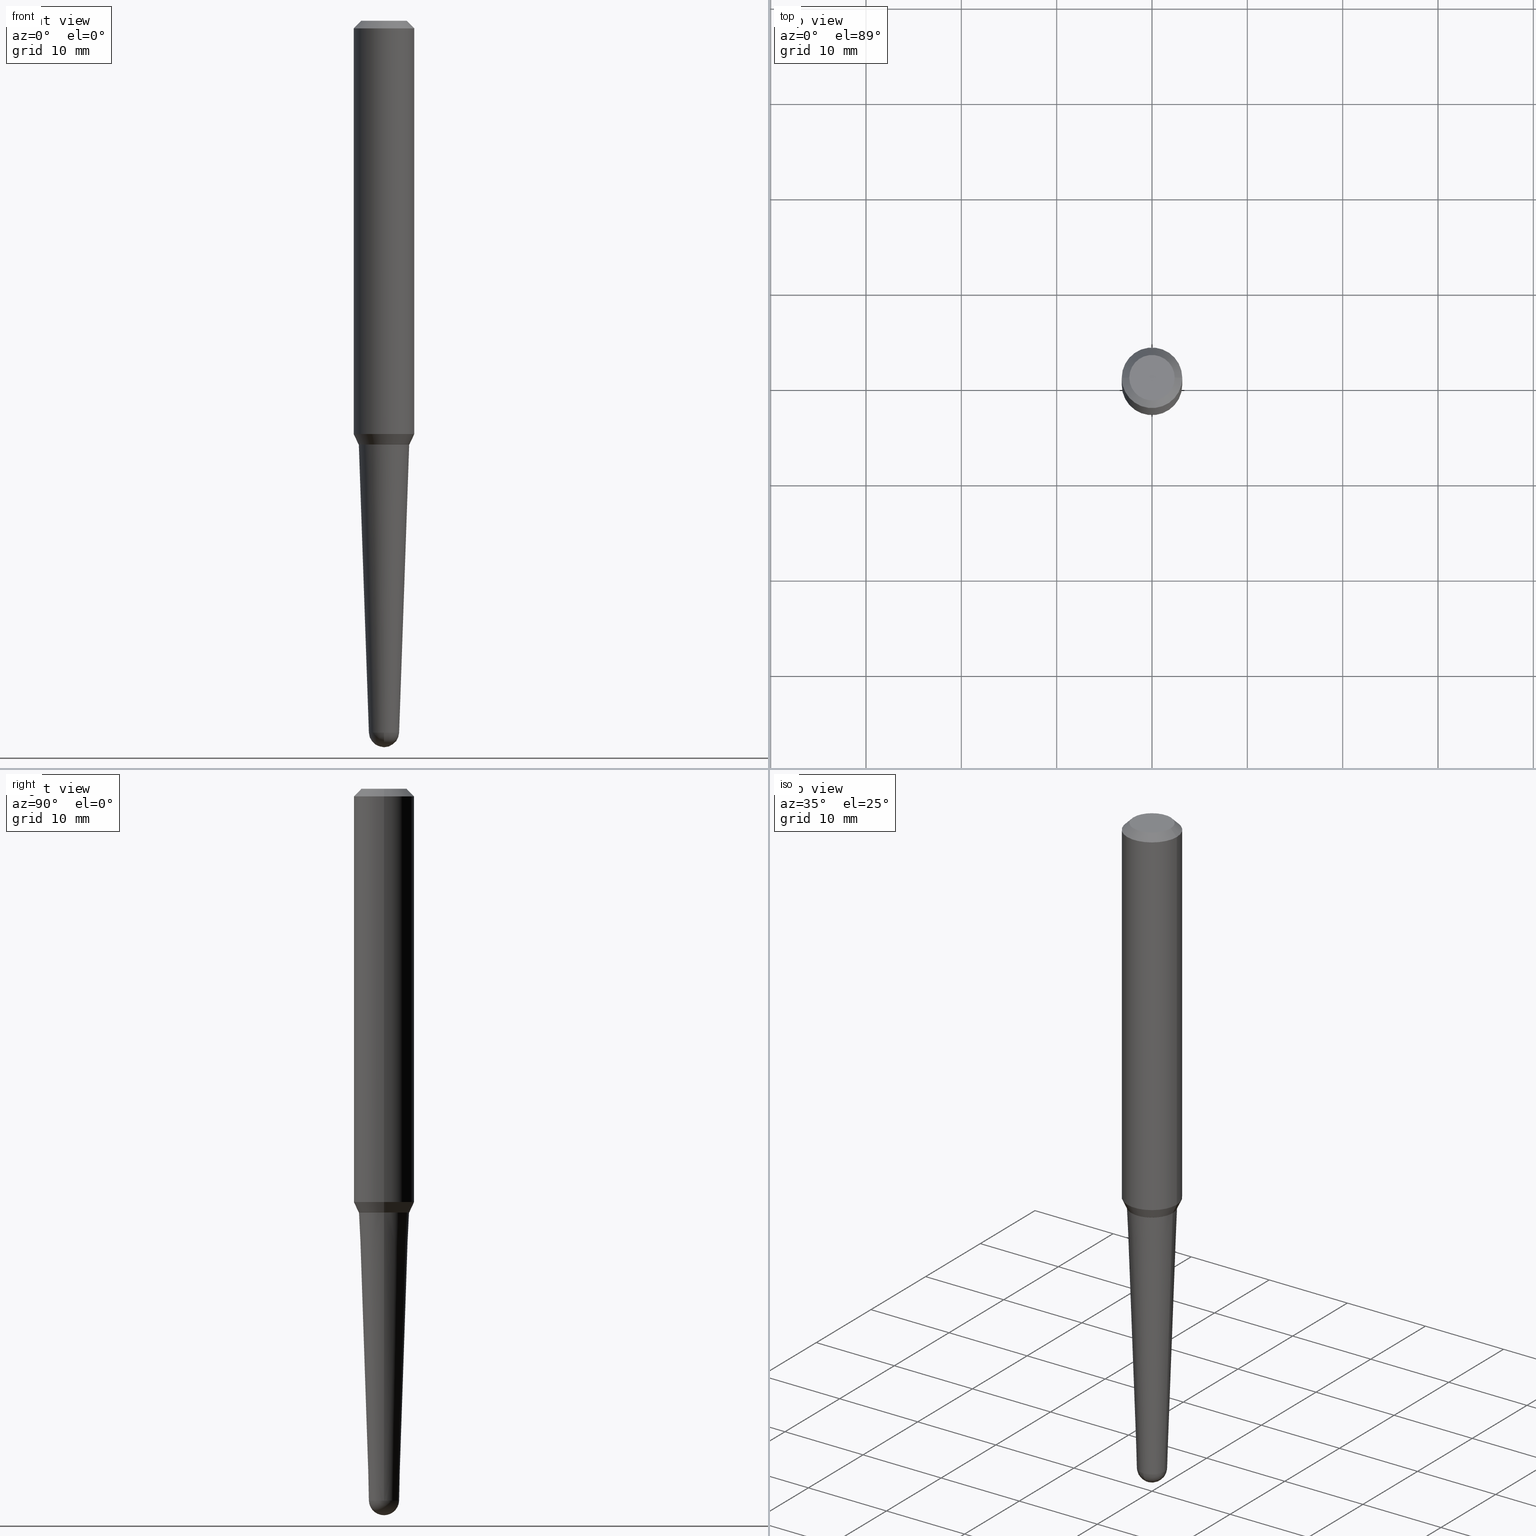
[diagram: canonical four-view strip — front | top / right | iso, engineering-drawing reading convention]
A machine part, canonical four-view strip (front | top / right | iso — engineering-drawing reading convention). The complete STEP part file that produces these views, byte-faithful:
ISO-10303-21;
HEADER;
FILE_DESCRIPTION (( 'STEP AP203' ),
    '1' );
FILE_NAME ('32406.STEP',
    '2024-03-04T15:23:05',
    ( '' ),
    ( '' ),
    'SwSTEP 2.0',
    'SolidWorks 2023',
    '' );
FILE_SCHEMA (( 'CONFIG_CONTROL_DESIGN' ));
ENDSEC;

DATA;
#1 = AXIS2_PLACEMENT_3D ( 'NONE', #50, #238, #412 ) ;
#2 = ORIENTED_EDGE ( 'NONE', *, *, #164, .F. ) ;
#3 = CARTESIAN_POINT ( 'NONE',  ( 0.1050065102901265729, -6.841603144576116644E-15, -1.749500000000000277 ) ) ;
#4 = EDGE_CURVE ( 'NONE', #457, #114, #172, .T. ) ;
#5 = CARTESIAN_POINT ( 'NONE',  ( 7.188898720077434965E-29, -1.026384211669372732E-14, -2.939681218543906294 ) ) ;
#6 = ORIENTED_EDGE ( 'NONE', *, *, #36, .F. ) ;
#7 = DIRECTION ( 'NONE',  ( 1.000000000000000000, -6.982962677686266711E-15, 4.852736867747369010E-29 ) ) ;
#8 = APPROVAL_ROLE ( '' ) ;
#9 = AXIS2_PLACEMENT_3D ( 'NONE', #312, #96, #212 ) ;
#10 = PERSON_AND_ORGANIZATION ( #250, #269 ) ;
#11 = DIRECTION ( 'NONE',  ( 0.03489949670250089980, 3.245652539804591788E-15, 0.9993908270190957621 ) ) ;
#12 = CARTESIAN_POINT ( 'NONE',  ( 7.642090019328557120E-31, -1.091087918388483734E-16, -0.03125000000000002082 ) ) ;
#13 = APPROVAL_DATE_TIME ( #44, #378 ) ;
#14 = EDGE_LOOP ( 'NONE', ( #222, #180, #128, #242 ) ) ;
#15 = DIRECTION ( 'NONE',  ( 0.7071067811865459074, -7.319954787623249734E-15, -0.7071067811865491270 ) ) ;
#16 = APPROVAL_DATE_TIME ( #201, #61 ) ;
#17 = AXIS2_PLACEMENT_3D ( 'NONE', #216, #89, #162 ) ;
#18 = CARTESIAN_POINT ( 'NONE',  ( -0.1045065102901267806, -5.364879698538517410E-15, -1.750000000000000444 ) ) ;
#19 = DIRECTION ( 'NONE',  ( 1.000000000000000000, -6.982962677686265922E-15, 4.876176775795935793E-29 ) ) ;
#20 = VECTOR ( 'NONE', #116, 39.37007874015748143 ) ;
#21 = CARTESIAN_POINT ( 'NONE',  ( 7.436103775026404221E-29, -9.894575986595534167E-15, -2.937500000000000000 ) ) ;
#22 = CARTESIAN_POINT ( 'NONE',  ( 0.1250000000000001943, -6.831515564972978588E-15, -1.706623822952039404 ) ) ;
#23 = PLANE ( 'NONE',  #17 ) ;
#24 = EDGE_LOOP ( 'NONE', ( #347, #26, #391, #392 ) ) ;
#25 = DIRECTION ( 'NONE',  ( 1.000000000000000000, -6.982962677686266711E-15, 0.000000000000000000 ) ) ;
#26 = ORIENTED_EDGE ( 'NONE', *, *, #157, .T. ) ;
#27 = CARTESIAN_POINT ( 'NONE',  ( 4.438186827023827801E-16, 0.06246192668868324332, -2.939681218543906294 ) ) ;
#28 = DIRECTION ( 'NONE',  ( -2.445468806185136597E-29, 3.491481338843145583E-15, 1.000000000000000000 ) ) ;
#29 = ORIENTED_EDGE ( 'NONE', *, *, #304, .T. ) ;
#30 = FACE_OUTER_BOUND ( 'NONE', #71, .T. ) ;
#31 = ORIENTED_EDGE ( 'NONE', *, *, #47, .F. ) ;
#32 = DIRECTION ( 'NONE',  ( -2.445468806185136597E-29, 3.491481338843145583E-15, 1.000000000000000000 ) ) ;
#33 = AXIS2_PLACEMENT_3D ( 'NONE', #123, #332, #411 ) ;
#34 = ORIENTED_EDGE ( 'NONE', *, *, #139, .F. ) ;
#35 = ADVANCED_FACE ( 'NONE', ( #321 ), #23, .F. ) ;
#36 = EDGE_CURVE ( 'NONE', #233, #313, #440, .T. ) ;
#37 = DIRECTION ( 'NONE',  ( -2.445468806185136597E-29, 3.491481338843145583E-15, 1.000000000000000000 ) ) ;
#38 = ORIENTED_EDGE ( 'NONE', *, *, #189, .F. ) ;
#39 = FACE_OUTER_BOUND ( 'NONE', #102, .T. ) ;
#40 = APPLICATION_PROTOCOL_DEFINITION ( 'international standard', 'config_control_design', 1994, #152 ) ;
#41 = EDGE_CURVE ( 'NONE', #143, #410, #273, .T. ) ;
#42 = VECTOR ( 'NONE', #11, 39.37007874015748143 ) ;
#43 = DIRECTION ( 'NONE',  ( -2.445468806185136597E-29, 3.491481338843145583E-15, 1.000000000000000000 ) ) ;
#44 = DATE_AND_TIME ( #305, #46 ) ;
#45 = VECTOR ( 'NONE', #387, 39.37007874015748854 ) ;
#46 = LOCAL_TIME ( 10, 23, 5.000000000000000000, #333 ) ;
#47 = EDGE_CURVE ( 'NONE', #313, #388, #54, .T. ) ;
#48 = CARTESIAN_POINT ( 'NONE',  ( -0.1249999999999996808, 7.637615428719326605E-16, -0.03125000000000002082 ) ) ;
#49 = PERSON_AND_ORGANIZATION_ROLE ( 'creator' ) ;
#50 = CARTESIAN_POINT ( 'NONE',  ( 4.278347676420897364E-29, -6.108346602306083956E-15, -1.749500000000000277 ) ) ;
#51 = EDGE_CURVE ( 'NONE', #136, #376, #429, .T. ) ;
#52 = ORIENTED_EDGE ( 'NONE', *, *, #246, .F. ) ;
#53 = DATE_AND_TIME ( #232, #203 ) ;
#54 = CIRCLE ( 'NONE', #147, 0.1249999999999996808 ) ;
#55 = MANIFOLD_SOLID_BREP ( 'Body-Move/Copy2[2]', #328 ) ;
#56 = EDGE_CURVE ( 'NONE', #65, #388, #228, .T. ) ;
#57 = AXIS2_PLACEMENT_3D ( 'NONE', #393, #181, #431 ) ;
#58 = EDGE_CURVE ( 'NONE', #396, #70, #390, .T. ) ;
#59 = CARTESIAN_POINT ( 'NONE',  ( 7.188898720077434965E-29, -1.026384211669372732E-14, -2.939681218543906294 ) ) ;
#60 = DIRECTION ( 'NONE',  ( -2.445468806185136597E-29, 3.491481338843145583E-15, 1.000000000000000000 ) ) ;
#61 = APPROVAL ( #327, 'UNSPECIFIED' ) ;
#62 = CIRCLE ( 'NONE', #308, 0.06246192668869351983 ) ;
#63 = FACE_OUTER_BOUND ( 'NONE', #318, .T. ) ;
#64 = CARTESIAN_POINT ( 'NONE',  ( 4.279570410823989605E-29, -6.110092342975506249E-15, -1.750000000000000444 ) ) ;
#65 = VERTEX_POINT ( 'NONE', #167 ) ;
#66 = CARTESIAN_POINT ( 'NONE',  ( -0.1045065102901267806, -5.367528925712628611E-15, -1.750000000000000444 ) ) ;
#67 = ORIENTED_EDGE ( 'NONE', *, *, #246, .T. ) ;
#68 = CARTESIAN_POINT ( 'NONE',  ( -0.1249999999999996808, -2.145698591350394182E-15, -0.03125000000000002082 ) ) ;
#69 = LOCAL_TIME ( 10, 23, 5.000000000000000000, #338 ) ;
#70 = VERTEX_POINT ( 'NONE', #301 ) ;
#71 = EDGE_LOOP ( 'NONE', ( #148, #75 ) ) ;
#72 = LOCAL_TIME ( 10, 23, 5.000000000000000000, #373 ) ;
#73 = CARTESIAN_POINT ( 'NONE',  ( -0.06246192668869351983, -7.595552536691422377E-15, -2.939681218543906294 ) ) ;
#74 = LENGTH_MEASURE_WITH_UNIT ( LENGTH_MEASURE( 0.02539999999999999897 ), #324 );
#75 = ORIENTED_EDGE ( 'NONE', *, *, #4, .T. ) ;
#76 =( CONVERSION_BASED_UNIT ( 'INCH', #74 ) LENGTH_UNIT ( ) NAMED_UNIT ( #294 ) );
#77 = AXIS2_PLACEMENT_3D ( 'NONE', #448, #160, #239 ) ;
#78 = CONICAL_SURFACE ( 'NONE', #101, 0.1050065102901265729, 0.4363323129985795523 ) ;
#79 = LINE ( 'NONE', #3, #95 ) ;
#80 = DIRECTION ( 'NONE',  ( -2.445468806185136597E-29, 3.491481338843145583E-15, 1.000000000000000000 ) ) ;
#81 = APPLICATION_PROTOCOL_DEFINITION ( 'international standard', 'config_control_design', 1994, #211 ) ;
#82 = ADVANCED_FACE ( 'NONE', ( #91 ), #153, .T. ) ;
#83 = ORIENTED_EDGE ( 'NONE', *, *, #58, .F. ) ;
#84 = APPROVAL_ROLE ( '' ) ;
#85 = DIRECTION ( 'NONE',  ( -2.445468806185136877E-29, 3.491481338843145188E-15, 1.000000000000000000 ) ) ;
#86 = AXIS2_PLACEMENT_3D ( 'NONE', #258, #122, #408 ) ;
#87 = PERSON_AND_ORGANIZATION ( #250, #269 ) ;
#88 = ORIENTED_EDGE ( 'NONE', *, *, #304, .F. ) ;
#89 = DIRECTION ( 'NONE',  ( 2.438088387897960049E-29, -3.491481338843145188E-15, -1.000000000000000000 ) ) ;
#90 = ORIENTED_EDGE ( 'NONE', *, *, #51, .T. ) ;
#91 = FACE_OUTER_BOUND ( 'NONE', #24, .T. ) ;
#92 = EDGE_CURVE ( 'NONE', #396, #457, #118, .T. ) ;
#93 = ADVANCED_FACE ( 'NONE', ( #39 ), #130, .T. ) ;
#94 = PERSON_AND_ORGANIZATION_ROLE ( 'design_owner' ) ;
#95 = VECTOR ( 'NONE', #434, 39.37007874015748143 ) ;
#96 = DIRECTION ( 'NONE',  ( 1.000000000000000000, -7.105427357601001070E-15, 4.926315508542082329E-29 ) ) ;
#97 = CC_DESIGN_DATE_AND_TIME_ASSIGNMENT ( #443, #125, ( #149 ) ) ;
#98 = FACE_OUTER_BOUND ( 'NONE', #330, .T. ) ;
#99 = VECTOR ( 'NONE', #296, 39.37007874015748143 ) ;
#100 = LINE ( 'NONE', #137, #166 ) ;
#101 = AXIS2_PLACEMENT_3D ( 'NONE', #252, #115, #322 ) ;
#102 = EDGE_LOOP ( 'NONE', ( #141, #2, #336, #219 ) ) ;
#103 = DIRECTION ( 'NONE',  ( 1.000000000000000000, -6.982962677686282488E-15, 0.000000000000000000 ) ) ;
#104 = ORIENTED_EDGE ( 'NONE', *, *, #41, .T. ) ;
#105 = CARTESIAN_POINT ( 'NONE',  ( -0.09375000000000009714, 7.092071469525098851E-16, -2.985923209265061018E-16 ) ) ;
#106 = ORIENTED_EDGE ( 'NONE', *, *, #56, .T. ) ;
#107 = EDGE_LOOP ( 'NONE', ( #287, #299, #67, #292, #190 ) ) ;
#108 = DIRECTION ( 'NONE',  ( 2.438088387897960049E-29, -3.491481338843145188E-15, -1.000000000000000000 ) ) ;
#109 = CONICAL_SURFACE ( 'NONE', #368, 0.1045065102901267806, 0.7853981633970726906 ) ;
#110 = CIRCLE ( 'NONE', #401, 0.06246192668869351983 ) ;
#111 = ORIENTED_EDGE ( 'NONE', *, *, #400, .F. ) ;
#112 = LOCAL_TIME ( 10, 23, 5.000000000000000000, #406 ) ;
#113 = LINE ( 'NONE', #285, #20 ) ;
#114 = VERTEX_POINT ( 'NONE', #257 ) ;
#115 = DIRECTION ( 'NONE',  ( -2.445468806185136597E-29, 3.491481338843145583E-15, 1.000000000000000000 ) ) ;
#116 = DIRECTION ( 'NONE',  ( -2.445468806185136877E-29, 3.491481338843145188E-15, 1.000000000000000000 ) ) ;
#117 = CLOSED_SHELL ( 'NONE', ( #161, #177, #127, #414, #437 ) ) ;
#118 = LINE ( 'NONE', #199, #262 ) ;
#119 = AXIS2_PLACEMENT_3D ( 'NONE', #173, #60, #454 ) ;
#120 = EDGE_LOOP ( 'NONE', ( #185, #90, #428, #31 ) ) ;
#121 = DIRECTION ( 'NONE',  ( 1.000000000000000000, -6.982962677686267499E-15, 0.000000000000000000 ) ) ;
#122 = DIRECTION ( 'NONE',  ( -2.445468806185136597E-29, 3.491481338843145583E-15, 1.000000000000000000 ) ) ;
#123 = CARTESIAN_POINT ( 'NONE',  ( 4.279570410823989605E-29, -6.110092342975506249E-15, -1.750000000000000444 ) ) ;
#124 = ADVANCED_FACE ( 'NONE', ( #445 ), #261, .T. ) ;
#125 = DATE_TIME_ROLE ( 'classification_date' ) ;
#126 = CARTESIAN_POINT ( 'NONE',  ( 7.436103775026404221E-29, -9.894575986595534167E-15, -2.937500000000000000 ) ) ;
#127 = ADVANCED_FACE ( 'NONE', ( #205 ), #334, .T. ) ;
#128 = ORIENTED_EDGE ( 'NONE', *, *, #395, .T. ) ;
#129 = ADVANCED_BREP_SHAPE_REPRESENTATION ( '32406', ( #208, #55, #439 ), #286 ) ;
#130 = CONICAL_SURFACE ( 'NONE', #419, 0.1249999999999996808, 0.7853981633974460586 ) ;
#131 = EDGE_CURVE ( 'NONE', #235, #409, #187, .T. ) ;
#132 = FACE_OUTER_BOUND ( 'NONE', #283, .T. ) ;
#133 = AXIS2_PLACEMENT_3D ( 'NONE', #272, #215, #213 ) ;
#134 = FACE_OUTER_BOUND ( 'NONE', #352, .T. ) ;
#135 = CARTESIAN_POINT ( 'NONE',  ( 7.436103775026404221E-29, -9.894575986595534167E-15, -2.937500000000000000 ) ) ;
#136 = VERTEX_POINT ( 'NONE', #202 ) ;
#137 = CARTESIAN_POINT ( 'NONE',  ( 0.1045065102901267806, -6.839857403906697507E-15, -1.750000000000000444 ) ) ;
#138 = CONICAL_SURFACE ( 'NONE', #456, 0.06246192668869351983, 0.03490658503988652156 ) ;
#139 = EDGE_CURVE ( 'NONE', #247, #114, #170, .T. ) ;
#140 = CC_DESIGN_APPROVAL ( #61, ( #149 ) ) ;
#141 = ORIENTED_EDGE ( 'NONE', *, *, #56, .F. ) ;
#142 = SPHERICAL_SURFACE ( 'NONE', #343, 0.06249999999999965999 ) ;
#143 = VERTEX_POINT ( 'NONE', #18 ) ;
#144 = ORIENTED_EDGE ( 'NONE', *, *, #435, .T. ) ;
#145 = VERTEX_POINT ( 'NONE', #268 ) ;
#146 = CC_DESIGN_PERSON_AND_ORGANIZATION_ASSIGNMENT ( #193, #302, ( #383 ) ) ;
#147 = AXIS2_PLACEMENT_3D ( 'NONE', #405, #43, #259 ) ;
#148 = ORIENTED_EDGE ( 'NONE', *, *, #413, .T. ) ;
#149 = SECURITY_CLASSIFICATION ( '', '', #168 ) ;
#150 =( NAMED_UNIT ( * ) SI_UNIT ( $, .STERADIAN. ) SOLID_ANGLE_UNIT ( ) );
#151 = DIRECTION ( 'NONE',  ( 1.000000000000000000, -6.982962677686266711E-15, 0.000000000000000000 ) ) ;
#152 = APPLICATION_CONTEXT ( 'configuration controlled 3d designs of mechanical parts and assemblies' ) ;
#153 = CYLINDRICAL_SURFACE ( 'NONE', #382, 0.1249999999999999306 ) ;
#154 = AXIS2_PLACEMENT_3D ( 'NONE', #453, #452, #19 ) ;
#155 = CALENDAR_DATE ( 2024, 4, 3 ) ;
#156 = APPROVAL_PERSON_ORGANIZATION ( #87, #61, #8 ) ;
#157 = EDGE_CURVE ( 'NONE', #136, #313, #404, .T. ) ;
#158 = UNCERTAINTY_MEASURE_WITH_UNIT (LENGTH_MEASURE( 1.000000000000000082E-05 ), #76, 'distance_accuracy_value', 'NONE');
#159 = APPROVAL_ROLE ( '' ) ;
#160 = DIRECTION ( 'NONE',  ( -2.445468806185136597E-29, 3.491481338843145583E-15, 1.000000000000000000 ) ) ;
#161 = ADVANCED_FACE ( 'NONE', ( #303 ), #284, .T. ) ;
#162 = DIRECTION ( 'NONE',  ( -1.000000000000000000, 6.982962677686265922E-15, -4.876176775795935793E-29 ) ) ;
#163 = CALENDAR_DATE ( 2024, 4, 3 ) ;
#164 = EDGE_CURVE ( 'NONE', #233, #65, #195, .T. ) ;
#165 = ORIENTED_EDGE ( 'NONE', *, *, #288, .F. ) ;
#166 = VECTOR ( 'NONE', #389, 39.37007874015748854 ) ;
#167 = CARTESIAN_POINT ( 'NONE',  ( 0.09375000000000009714, -8.049213644256852233E-16, -2.985923209264961917E-16 ) ) ;
#168 = SECURITY_CLASSIFICATION_LEVEL ( 'unclassified' ) ;
#169 = CIRCLE ( 'NONE', #421, 0.1249999999999996808 ) ;
#170 = LINE ( 'NONE', #306, #42 ) ;
#171 = ADVANCED_FACE ( 'NONE', ( #275 ), #109, .T. ) ;
#172 = CIRCLE ( 'NONE', #298, 0.1040065102901267385 ) ;
#173 = CARTESIAN_POINT ( 'NONE',  ( 7.301982065921803301E-45, -1.042529516436742983E-30, -2.985923209265013193E-16 ) ) ;
#174 = AXIS2_PLACEMENT_3D ( 'NONE', #209, #342, #271 ) ;
#175 = DIRECTION ( 'NONE',  ( -6.982962677686265922E-15, -1.000000000000000000, 0.000000000000000000 ) ) ;
#176 = LINE ( 'NONE', #66, #45 ) ;
#177 = ADVANCED_FACE ( 'NONE', ( #63 ), #142, .T. ) ;
#178 = EDGE_LOOP ( 'NONE', ( #315, #398, #425, #38 ) ) ;
#179 = CARTESIAN_POINT ( 'NONE',  ( 4.278347676420897364E-29, -6.108346602306083956E-15, -1.749500000000000277 ) ) ;
#180 = ORIENTED_EDGE ( 'NONE', *, *, #131, .T. ) ;
#181 = DIRECTION ( 'NONE',  ( -2.445468806185136597E-29, 3.491481338843145583E-15, 1.000000000000000000 ) ) ;
#182 = DIRECTION ( 'NONE',  ( 1.000000000000000000, -6.982962677686265133E-15, 0.000000000000000000 ) ) ;
#183 = PRODUCT_DEFINITION ( 'UNKNOWN', '', #383, #293 ) ;
#184 = FACE_OUTER_BOUND ( 'NONE', #14, .T. ) ;
#185 = ORIENTED_EDGE ( 'NONE', *, *, #157, .F. ) ;
#186 = PLANE ( 'NONE',  #237 ) ;
#187 = CIRCLE ( 'NONE', #1, 0.1050065102901265729 ) ;
#188 = CARTESIAN_POINT ( 'NONE',  ( 0.000000000000000000, 0.000000000000000000, 0.000000000000000000 ) ) ;
#189 = EDGE_CURVE ( 'NONE', #410, #409, #100, .T. ) ;
#190 = ORIENTED_EDGE ( 'NONE', *, *, #4, .F. ) ;
#191 = DIRECTION ( 'NONE',  ( -2.445468806185136597E-29, 3.491481338843145583E-15, 1.000000000000000000 ) ) ;
#192 = DIRECTION ( 'NONE',  ( -1.000000000000000000, 6.982962677686266711E-15, 0.000000000000000000 ) ) ;
#193 = PERSON_AND_ORGANIZATION ( #250, #269 ) ;
#194 = EDGE_CURVE ( 'NONE', #247, #357, #62, .T. ) ;
#195 = CIRCLE ( 'NONE', #77, 0.09375000000000009714 ) ;
#196 = DIRECTION ( 'NONE',  ( 2.445468806185136597E-29, -3.491481338843145583E-15, -1.000000000000000000 ) ) ;
#197 = AXIS2_PLACEMENT_3D ( 'NONE', #356, #220, #326 ) ;
#198 = APPROVAL_DATE_TIME ( #297, #460 ) ;
#199 = CARTESIAN_POINT ( 'NONE',  ( -0.06246192668869351983, -9.820023433991416822E-15, -2.939681218543906294 ) ) ;
#200 = PRODUCT_DEFINITION_SHAPE ( 'NONE', 'NONE',  #183 ) ;
#201 = DATE_AND_TIME ( #155, #72 ) ;
#202 = CARTESIAN_POINT ( 'NONE',  ( -0.1250000000000001943, -5.070466810562066862E-15, -1.706623822952039404 ) ) ;
#203 = LOCAL_TIME ( 10, 23, 5.000000000000000000, #229 ) ;
#204 = AXIS2_PLACEMENT_3D ( 'NONE', #64, #350, #25 ) ;
#205 = FACE_OUTER_BOUND ( 'NONE', #244, .T. ) ;
#206 = PRODUCT_RELATED_PRODUCT_CATEGORY ( 'detail', '', ( #362 ) ) ;
#207 = DIRECTION ( 'NONE',  ( 1.000000000000000000, -6.982962677686282488E-15, 0.000000000000000000 ) ) ;
#208 = MANIFOLD_SOLID_BREP ( 'Body-Move/Copy2[1]', #117 ) ;
#209 = CARTESIAN_POINT ( 'NONE',  ( 7.642090019328557120E-31, -1.091087918388483734E-16, -0.03125000000000002082 ) ) ;
#210 = EDGE_CURVE ( 'NONE', #145, #357, #255, .T. ) ;
#211 = APPLICATION_CONTEXT ( 'configuration controlled 3d designs of mechanical parts and assemblies' ) ;
#212 = DIRECTION ( 'NONE',  ( 7.105427357601000281E-15, 1.000000000000000000, 0.000000000000000000 ) ) ;
#213 = DIRECTION ( 'NONE',  ( 1.000000000000000000, -6.982962677686282488E-15, 0.000000000000000000 ) ) ;
#214 = ORIENTED_EDGE ( 'NONE', *, *, #194, .T. ) ;
#215 = DIRECTION ( 'NONE',  ( -2.445468806185136597E-29, 3.491481338843145583E-15, 1.000000000000000000 ) ) ;
#216 = CARTESIAN_POINT ( 'NONE',  ( 3.650991032960901650E-45, -5.212647582183714915E-31, -1.492961604632506596E-16 ) ) ;
#217 = ORIENTED_EDGE ( 'NONE', *, *, #41, .F. ) ;
#218 = DIRECTION ( 'NONE',  ( -2.445468806185136597E-29, 3.491481338843145583E-15, 1.000000000000000000 ) ) ;
#219 = ORIENTED_EDGE ( 'NONE', *, *, #47, .T. ) ;
#220 = DIRECTION ( 'NONE',  ( -2.445468806185136597E-29, 3.491481338843145583E-15, 1.000000000000000000 ) ) ;
#221 = ORIENTED_EDGE ( 'NONE', *, *, #131, .F. ) ;
#222 = ORIENTED_EDGE ( 'NONE', *, *, #372, .F. ) ;
#223 = AXIS2_PLACEMENT_3D ( 'NONE', #135, #344, #458 ) ;
#224 = DIRECTION ( 'NONE',  ( 1.000000000000000000, -6.982962677686265133E-15, 0.000000000000000000 ) ) ;
#225 = ADVANCED_FACE ( 'NONE', ( #132 ), #424, .F. ) ;
#226 = CARTESIAN_POINT ( 'NONE',  ( 7.188898720077434965E-29, -1.026384211669372732E-14, -2.939681218543906294 ) ) ;
#227 = CARTESIAN_POINT ( 'NONE',  ( 4.279570410823989044E-29, -6.110092342975505460E-15, -1.750000000000000222 ) ) ;
#228 = LINE ( 'NONE', #366, #399 ) ;
#229 = COORDINATED_UNIVERSAL_TIME_OFFSET ( 5, 0, .BEHIND. ) ;
#230 = CC_DESIGN_PERSON_AND_ORGANIZATION_ASSIGNMENT ( #295, #236, ( #149 ) ) ;
#231 = CONICAL_SURFACE ( 'NONE', #329, 0.1050065102901265729, 0.4363323129985795523 ) ;
#232 = CALENDAR_DATE ( 2024, 4, 3 ) ;
#233 = VERTEX_POINT ( 'NONE', #105 ) ;
#234 = DIRECTION ( 'NONE',  ( 1.000000000000000000, -6.982962677686265922E-15, 4.883557194083112340E-29 ) ) ;
#235 = VERTEX_POINT ( 'NONE', #316 ) ;
#236 = PERSON_AND_ORGANIZATION_ROLE ( 'classification_officer' ) ;
#237 = AXIS2_PLACEMENT_3D ( 'NONE', #436, #108, #319 ) ;
#238 = DIRECTION ( 'NONE',  ( -2.445468806185136597E-29, 3.491481338843145583E-15, 1.000000000000000000 ) ) ;
#239 = DIRECTION ( 'NONE',  ( 1.000000000000000000, -6.982962677686265922E-15, 4.852736867747361162E-29 ) ) ;
#240 = DIRECTION ( 'NONE',  ( 1.000000000000000000, -6.982962677686266711E-15, 0.000000000000000000 ) ) ;
#241 = CARTESIAN_POINT ( 'NONE',  ( 7.188898720077434965E-29, -1.026384211669372732E-14, -2.939681218543906294 ) ) ;
#242 = ORIENTED_EDGE ( 'NONE', *, *, #51, .F. ) ;
#243 = DIRECTION ( 'NONE',  ( 1.000000000000000000, -6.982962677686282488E-15, 0.000000000000000000 ) ) ;
#244 = EDGE_LOOP ( 'NONE', ( #459, #353, #83, #88 ) ) ;
#245 = CARTESIAN_POINT ( 'NONE',  ( 0.06246192668869351983, -8.768188671052553083E-15, -2.939681218543906294 ) ) ;
#246 = EDGE_CURVE ( 'NONE', #70, #247, #110, .T. ) ;
#247 = VERTEX_POINT ( 'NONE', #245 ) ;
#248 = ORIENTED_EDGE ( 'NONE', *, *, #372, .T. ) ;
#249 = DIRECTION ( 'NONE',  ( 0.000000000000000000, 0.000000000000000000, 1.000000000000000000 ) ) ;
#250 = PERSON ( 'UNSPECIFIED', 'UNSPECIFIED', 'UNSPECIFIED', ('UNSPECIFIED'), ('UNSPECIFIED'), ('UNSPECIFIED') ) ;
#251 = ORIENTED_EDGE ( 'NONE', *, *, #210, .T. ) ;
#252 = CARTESIAN_POINT ( 'NONE',  ( 4.278347676420897364E-29, -6.108346602306083956E-15, -1.749500000000000277 ) ) ;
#253 = ORIENTED_EDGE ( 'NONE', *, *, #92, .T. ) ;
#254 = CARTESIAN_POINT ( 'NONE',  ( 0.1249999999999996808, -9.819791265496294812E-16, -0.03125000000000002082 ) ) ;
#255 = CIRCLE ( 'NONE', #9, 0.06249999999999965999 ) ;
#256 = CIRCLE ( 'NONE', #57, 0.1050065102901265729 ) ;
#257 = CARTESIAN_POINT ( 'NONE',  ( 0.1040065102901267385, -6.836365922567853711E-15, -1.750000000000000222 ) ) ;
#258 = CARTESIAN_POINT ( 'NONE',  ( -1.450455682483482035E-44, 2.070866303999251778E-30, 5.931196827434296760E-16 ) ) ;
#259 = DIRECTION ( 'NONE',  ( 1.000000000000000000, -6.982962677686266711E-15, 0.000000000000000000 ) ) ;
#260 = APPROVAL_STATUS ( 'not_yet_approved' ) ;
#261 = CYLINDRICAL_SURFACE ( 'NONE', #86, 0.1249999999999999306 ) ;
#262 = VECTOR ( 'NONE', #371, 39.37007874015748143 ) ;
#263 = ORIENTED_EDGE ( 'NONE', *, *, #420, .F. ) ;
#264 = CALENDAR_DATE ( 2024, 4, 3 ) ;
#265 = CC_DESIGN_SECURITY_CLASSIFICATION ( #149, ( #383 ) ) ;
#266 = ORIENTED_EDGE ( 'NONE', *, *, #194, .F. ) ;
#267 = PERSON_AND_ORGANIZATION ( #250, #269 ) ;
#268 = CARTESIAN_POINT ( 'NONE',  ( 7.586273180759290019E-29, -1.011662059152056390E-14, -2.999999999999999556 ) ) ;
#269 = ORGANIZATION ( 'UNSPECIFIED', 'UNSPECIFIED', '' ) ;
#270 = DIRECTION ( 'NONE',  ( 1.000000000000000000, -6.982962677686265922E-15, 4.883557194083112340E-29 ) ) ;
#271 = DIRECTION ( 'NONE',  ( -1.000000000000000000, 6.982962677686266711E-15, 0.000000000000000000 ) ) ;
#272 = CARTESIAN_POINT ( 'NONE',  ( 7.188898720077434965E-29, -1.026384211669372732E-14, -2.939681218543906294 ) ) ;
#273 = CIRCLE ( 'NONE', #33, 0.1045065102901267806 ) ;
#274 = ORIENTED_EDGE ( 'NONE', *, *, #395, .F. ) ;
#275 = FACE_OUTER_BOUND ( 'NONE', #178, .T. ) ;
#276 = CIRCLE ( 'NONE', #197, 0.1250000000000001943 ) ;
#277 = ORIENTED_EDGE ( 'NONE', *, *, #381, .F. ) ;
#278 = CC_DESIGN_DATE_AND_TIME_ASSIGNMENT ( #53, #331, ( #183 ) ) ;
#279 = CARTESIAN_POINT ( 'NONE',  ( 4.279570410823989605E-29, -6.110092342975506249E-15, -1.750000000000000444 ) ) ;
#280 = ORIENTED_EDGE ( 'NONE', *, *, #413, .F. ) ;
#281 =( NAMED_UNIT ( * ) PLANE_ANGLE_UNIT ( ) SI_UNIT ( $, .RADIAN. ) );
#282 = EDGE_CURVE ( 'NONE', #145, #70, #291, .T. ) ;
#283 = EDGE_LOOP ( 'NONE', ( #263, #217 ) ) ;
#284 = CONICAL_SURFACE ( 'NONE', #455, 0.06246192668869351983, 0.03490658503988652156 ) ;
#285 = CARTESIAN_POINT ( 'NONE',  ( 0.1249999999999999306, -8.728703347107807750E-16, 5.931196827434357896E-16 ) ) ;
#286 =( GEOMETRIC_REPRESENTATION_CONTEXT ( 3 ) GLOBAL_UNCERTAINTY_ASSIGNED_CONTEXT ( ( #158 ) ) GLOBAL_UNIT_ASSIGNED_CONTEXT ( ( #76, #281, #150 ) ) REPRESENTATION_CONTEXT ( 'NONE', 'WORKASPACE' ) );
#287 = ORIENTED_EDGE ( 'NONE', *, *, #92, .F. ) ;
#288 = EDGE_CURVE ( 'NONE', #143, #235, #176, .T. ) ;
#289 = DIRECTION ( 'NONE',  ( 1.000000000000000000, -6.982962677686282488E-15, 0.000000000000000000 ) ) ;
#290 = CARTESIAN_POINT ( 'NONE',  ( -1.450455682483482035E-44, 2.070866303999251778E-30, 5.931196827434296760E-16 ) ) ;
#291 = CIRCLE ( 'NONE', #223, 0.06249999999999965999 ) ;
#292 = ORIENTED_EDGE ( 'NONE', *, *, #139, .T. ) ;
#293 = DESIGN_CONTEXT ( 'detailed design', #152, 'design' ) ;
#294 = DIMENSIONAL_EXPONENTS ( 1.000000000000000000, 0.000000000000000000, 0.000000000000000000, 0.000000000000000000, 0.000000000000000000, 0.000000000000000000, 0.000000000000000000 ) ;
#295 = PERSON_AND_ORGANIZATION ( #250, #269 ) ;
#296 = DIRECTION ( 'NONE',  ( -0.7071067811865459074, 2.468850131082240100E-15, -0.7071067811865491270 ) ) ;
#297 = DATE_AND_TIME ( #163, #69 ) ;
#298 = AXIS2_PLACEMENT_3D ( 'NONE', #349, #28, #182 ) ;
#299 = ORIENTED_EDGE ( 'NONE', *, *, #58, .T. ) ;
#300 = AXIS2_PLACEMENT_3D ( 'NONE', #227, #32, #224 ) ;
#301 = CARTESIAN_POINT ( 'NONE',  ( -4.361693028434480712E-16, -0.06246192668870341469, -2.939681218543906294 ) ) ;
#302 = PERSON_AND_ORGANIZATION_ROLE ( 'design_supplier' ) ;
#303 = FACE_OUTER_BOUND ( 'NONE', #433, .T. ) ;
#304 = EDGE_CURVE ( 'NONE', #357, #396, #432, .T. ) ;
#305 = CALENDAR_DATE ( 2024, 4, 3 ) ;
#306 = CARTESIAN_POINT ( 'NONE',  ( 0.06246192668869351983, -1.070001141953725167E-14, -2.939681218543906294 ) ) ;
#307 = CARTESIAN_POINT ( 'NONE',  ( 7.642090019328557120E-31, -1.091087918388483734E-16, -0.03125000000000002082 ) ) ;
#308 = AXIS2_PLACEMENT_3D ( 'NONE', #241, #417, #243 ) ;
#309 = CIRCLE ( 'NONE', #415, 0.1045065102901267806 ) ;
#310 = CC_DESIGN_PERSON_AND_ORGANIZATION_ASSIGNMENT ( #10, #49, ( #383 ) ) ;
#311 = CC_DESIGN_APPROVAL ( #378, ( #383 ) ) ;
#312 = CARTESIAN_POINT ( 'NONE',  ( 7.436103775026404221E-29, -9.894575986595534167E-15, -2.937500000000000000 ) ) ;
#313 = VERTEX_POINT ( 'NONE', #68 ) ;
#314 = DIRECTION ( 'NONE',  ( 1.000000000000000000, -6.982962677686266711E-15, 0.000000000000000000 ) ) ;
#315 = ORIENTED_EDGE ( 'NONE', *, *, #420, .T. ) ;
#316 = CARTESIAN_POINT ( 'NONE',  ( -0.1050065102901265729, -5.362230471364407786E-15, -1.749500000000000277 ) ) ;
#317 = CONICAL_SURFACE ( 'NONE', #174, 0.1249999999999996808, 0.7853981633974460586 ) ;
#318 = EDGE_LOOP ( 'NONE', ( #365, #251, #266, #52 ) ) ;
#319 = DIRECTION ( 'NONE',  ( -1.000000000000000000, 6.982962677686265922E-15, -4.876176775795935793E-29 ) ) ;
#320 = EDGE_CURVE ( 'NONE', #388, #313, #169, .T. ) ;
#321 = FACE_OUTER_BOUND ( 'NONE', #427, .T. ) ;
#322 = DIRECTION ( 'NONE',  ( 1.000000000000000000, -6.982962677686266711E-15, 0.000000000000000000 ) ) ;
#323 = EDGE_LOOP ( 'NONE', ( #144, #248, #111, #274 ) ) ;
#324 =( LENGTH_UNIT ( ) NAMED_UNIT ( * ) SI_UNIT ( $, .METRE. ) );
#325 = CARTESIAN_POINT ( 'NONE',  ( 0.1050065102901265729, -6.841603144576116644E-15, -1.749500000000000277 ) ) ;
#326 = DIRECTION ( 'NONE',  ( 1.000000000000000000, -6.982962677686267499E-15, 0.000000000000000000 ) ) ;
#327 = APPROVAL_STATUS ( 'not_yet_approved' ) ;
#328 = CLOSED_SHELL ( 'NONE', ( #386, #82, #346, #171, #225, #335, #397, #124, #93, #35 ) ) ;
#329 = AXIS2_PLACEMENT_3D ( 'NONE', #179, #426, #314 ) ;
#330 = EDGE_LOOP ( 'NONE', ( #277, #106, #446, #6 ) ) ;
#331 = DATE_TIME_ROLE ( 'creation_date' ) ;
#332 = DIRECTION ( 'NONE',  ( -2.445468806185136597E-29, 3.491481338843145583E-15, 1.000000000000000000 ) ) ;
#333 = COORDINATED_UNIVERSAL_TIME_OFFSET ( 5, 0, .BEHIND. ) ;
#334 = SPHERICAL_SURFACE ( 'NONE', #444, 0.06249999999999965999 ) ;
#335 = ADVANCED_FACE ( 'NONE', ( #134 ), #370, .T. ) ;
#336 = ORIENTED_EDGE ( 'NONE', *, *, #36, .T. ) ;
#337 = DIRECTION ( 'NONE',  ( -2.445468806185136597E-29, 3.491481338843145583E-15, 1.000000000000000000 ) ) ;
#338 = COORDINATED_UNIVERSAL_TIME_OFFSET ( 5, 0, .BEHIND. ) ;
#339 = CIRCLE ( 'NONE', #300, 0.1040065102901267385 ) ;
#340 = SHAPE_DEFINITION_REPRESENTATION ( #200, #129 ) ;
#341 = CC_DESIGN_PERSON_AND_ORGANIZATION_ASSIGNMENT ( #354, #94, ( #362 ) ) ;
#342 = DIRECTION ( 'NONE',  ( 2.445468806185136597E-29, -3.491481338843145583E-15, -1.000000000000000000 ) ) ;
#343 = AXIS2_PLACEMENT_3D ( 'NONE', #21, #270, #175 ) ;
#344 = DIRECTION ( 'NONE',  ( -1.000000000000000000, 6.982962677686265922E-15, -4.883557194083112340E-29 ) ) ;
#345 = DIRECTION ( 'NONE',  ( -0.4226182617406967768, 6.167240084480822623E-15, 0.9063077870366512689 ) ) ;
#346 = ADVANCED_FACE ( 'NONE', ( #379 ), #231, .T. ) ;
#347 = ORIENTED_EDGE ( 'NONE', *, *, #400, .T. ) ;
#348 = DIRECTION ( 'NONE',  ( -2.445468806185136597E-29, 3.491481338843145583E-15, 1.000000000000000000 ) ) ;
#349 = CARTESIAN_POINT ( 'NONE',  ( 4.279570410823989044E-29, -6.110092342975505460E-15, -1.750000000000000222 ) ) ;
#350 = DIRECTION ( 'NONE',  ( -2.445468806185136597E-29, 3.491481338843145583E-15, 1.000000000000000000 ) ) ;
#351 = APPROVAL_PERSON_ORGANIZATION ( #267, #460, #84 ) ;
#352 = EDGE_LOOP ( 'NONE', ( #165, #104, #422, #221 ) ) ;
#353 = ORIENTED_EDGE ( 'NONE', *, *, #282, .T. ) ;
#354 = PERSON_AND_ORGANIZATION ( #250, #269 ) ;
#355 = CC_DESIGN_PERSON_AND_ORGANIZATION_ASSIGNMENT ( #367, #403, ( #183 ) ) ;
#356 = CARTESIAN_POINT ( 'NONE',  ( 4.173495322921637163E-29, -5.958645230262193672E-15, -1.706623822952039404 ) ) ;
#357 = VERTEX_POINT ( 'NONE', #27 ) ;
#358 = AXIS2_PLACEMENT_3D ( 'NONE', #226, #191, #361 ) ;
#359 = MECHANICAL_CONTEXT ( 'NONE', #211, 'mechanical' ) ;
#360 = CIRCLE ( 'NONE', #119, 0.09375000000000009714 ) ;
#361 = DIRECTION ( 'NONE',  ( 1.000000000000000000, -6.982962677686282488E-15, 0.000000000000000000 ) ) ;
#362 = PRODUCT ( '32406', '32406', '', ( #359 ) ) ;
#363 = DIRECTION ( 'NONE',  ( 1.000000000000000000, 0.000000000000000000, 0.000000000000000000 ) ) ;
#364 = FACE_OUTER_BOUND ( 'NONE', #107, .T. ) ;
#365 = ORIENTED_EDGE ( 'NONE', *, *, #282, .F. ) ;
#366 = CARTESIAN_POINT ( 'NONE',  ( 0.1249999999999996808, -9.666710415602875877E-16, -0.03125000000000002082 ) ) ;
#367 = PERSON_AND_ORGANIZATION ( #250, #269 ) ;
#368 = AXIS2_PLACEMENT_3D ( 'NONE', #279, #416, #380 ) ;
#369 = DIRECTION ( 'NONE',  ( -2.445468806185136597E-29, 3.491481338843145583E-15, 1.000000000000000000 ) ) ;
#370 = CONICAL_SURFACE ( 'NONE', #204, 0.1045065102901267806, 0.7853981633970726906 ) ;
#371 = DIRECTION ( 'NONE',  ( -0.03489949670250089980, 3.737330261384646804E-15, 0.9993908270190957621 ) ) ;
#372 = EDGE_CURVE ( 'NONE', #235, #136, #418, .T. ) ;
#373 = COORDINATED_UNIVERSAL_TIME_OFFSET ( 5, 0, .BEHIND. ) ;
#374 = PERSON_AND_ORGANIZATION ( #250, #269 ) ;
#375 = DIRECTION ( 'NONE',  ( -6.982962677686265922E-15, -1.000000000000000000, 0.000000000000000000 ) ) ;
#376 = VERTEX_POINT ( 'NONE', #22 ) ;
#377 = CARTESIAN_POINT ( 'NONE',  ( -0.1249999999999999306, 8.881784197001268101E-16, 5.931196827434234637E-16 ) ) ;
#378 = APPROVAL ( #260, 'UNSPECIFIED' ) ;
#379 = FACE_OUTER_BOUND ( 'NONE', #323, .T. ) ;
#380 = DIRECTION ( 'NONE',  ( 1.000000000000000000, -6.982962677686266711E-15, 0.000000000000000000 ) ) ;
#381 = EDGE_CURVE ( 'NONE', #65, #233, #360, .T. ) ;
#382 = AXIS2_PLACEMENT_3D ( 'NONE', #290, #80, #7 ) ;
#383 = PRODUCT_DEFINITION_FORMATION_WITH_SPECIFIED_SOURCE ( 'ANY', '', #362, .NOT_KNOWN. ) ;
#384 = CARTESIAN_POINT ( 'NONE',  ( 7.188898720077434965E-29, -1.026384211669372732E-14, -2.939681218543906294 ) ) ;
#385 = ORIENTED_EDGE ( 'NONE', *, *, #381, .T. ) ;
#386 = ADVANCED_FACE ( 'NONE', ( #98 ), #317, .T. ) ;
#387 = DIRECTION ( 'NONE',  ( -0.7071067811862817853, 7.493145998869393328E-15, 0.7071067811868130271 ) ) ;
#388 = VERTEX_POINT ( 'NONE', #254 ) ;
#389 = DIRECTION ( 'NONE',  ( 0.7071067811862817853, -2.468850131079474354E-15, 0.7071067811868130271 ) ) ;
#390 = CIRCLE ( 'NONE', #358, 0.06246192668869351983 ) ;
#391 = ORIENTED_EDGE ( 'NONE', *, *, #320, .F. ) ;
#392 = ORIENTED_EDGE ( 'NONE', *, *, #442, .F. ) ;
#393 = CARTESIAN_POINT ( 'NONE',  ( 4.278347676420897364E-29, -6.108346602306083956E-15, -1.749500000000000277 ) ) ;
#394 = VECTOR ( 'NONE', #345, 39.37007874015748143 ) ;
#395 = EDGE_CURVE ( 'NONE', #409, #376, #79, .T. ) ;
#396 = VERTEX_POINT ( 'NONE', #73 ) ;
#397 = ADVANCED_FACE ( 'NONE', ( #184 ), #78, .T. ) ;
#398 = ORIENTED_EDGE ( 'NONE', *, *, #288, .T. ) ;
#399 = VECTOR ( 'NONE', #15, 39.37007874015748143 ) ;
#400 = EDGE_CURVE ( 'NONE', #376, #136, #276, .T. ) ;
#401 = AXIS2_PLACEMENT_3D ( 'NONE', #384, #218, #103 ) ;
#402 = DIRECTION ( 'NONE',  ( -2.445468806185136597E-29, 3.491481338843145583E-15, 1.000000000000000000 ) ) ;
#403 = PERSON_AND_ORGANIZATION_ROLE ( 'creator' ) ;
#404 = LINE ( 'NONE', #377, #449 ) ;
#405 = CARTESIAN_POINT ( 'NONE',  ( 7.642090019328557120E-31, -1.091087918388483734E-16, -0.03125000000000002082 ) ) ;
#406 = COORDINATED_UNIVERSAL_TIME_OFFSET ( 5, 0, .BEHIND. ) ;
#407 = AXIS2_PLACEMENT_3D ( 'NONE', #447, #337, #121 ) ;
#408 = DIRECTION ( 'NONE',  ( 1.000000000000000000, -6.982962677686266711E-15, 4.852736867747369010E-29 ) ) ;
#409 = VERTEX_POINT ( 'NONE', #325 ) ;
#410 = VERTEX_POINT ( 'NONE', #438 ) ;
#411 = DIRECTION ( 'NONE',  ( 1.000000000000000000, -6.982962677686266711E-15, 0.000000000000000000 ) ) ;
#412 = DIRECTION ( 'NONE',  ( 1.000000000000000000, -6.982962677686266711E-15, 0.000000000000000000 ) ) ;
#413 = EDGE_CURVE ( 'NONE', #114, #457, #339, .T. ) ;
#414 = ADVANCED_FACE ( 'NONE', ( #364 ), #138, .T. ) ;
#415 = AXIS2_PLACEMENT_3D ( 'NONE', #462, #37, #151 ) ;
#416 = DIRECTION ( 'NONE',  ( -2.445468806185136597E-29, 3.491481338843145583E-15, 1.000000000000000000 ) ) ;
#417 = DIRECTION ( 'NONE',  ( -2.445468806185136597E-29, 3.491481338843145583E-15, 1.000000000000000000 ) ) ;
#418 = LINE ( 'NONE', #450, #394 ) ;
#419 = AXIS2_PLACEMENT_3D ( 'NONE', #12, #196, #192 ) ;
#420 = EDGE_CURVE ( 'NONE', #410, #143, #309, .T. ) ;
#421 = AXIS2_PLACEMENT_3D ( 'NONE', #307, #348, #240 ) ;
#422 = ORIENTED_EDGE ( 'NONE', *, *, #189, .T. ) ;
#423 = APPROVAL_PERSON_ORGANIZATION ( #374, #378, #159 ) ;
#424 = PLANE ( 'NONE',  #154 ) ;
#425 = ORIENTED_EDGE ( 'NONE', *, *, #435, .F. ) ;
#426 = DIRECTION ( 'NONE',  ( -2.445468806185136597E-29, 3.491481338843145583E-15, 1.000000000000000000 ) ) ;
#427 = EDGE_LOOP ( 'NONE', ( #430, #385 ) ) ;
#428 = ORIENTED_EDGE ( 'NONE', *, *, #442, .T. ) ;
#429 = CIRCLE ( 'NONE', #407, 0.1250000000000001943 ) ;
#430 = ORIENTED_EDGE ( 'NONE', *, *, #164, .T. ) ;
#431 = DIRECTION ( 'NONE',  ( 1.000000000000000000, -6.982962677686266711E-15, 0.000000000000000000 ) ) ;
#432 = CIRCLE ( 'NONE', #133, 0.06246192668869351983 ) ;
#433 = EDGE_LOOP ( 'NONE', ( #29, #253, #280, #34, #214 ) ) ;
#434 = DIRECTION ( 'NONE',  ( 0.4226182617406967768, 2.132291770427638598E-16, 0.9063077870366512689 ) ) ;
#435 = EDGE_CURVE ( 'NONE', #409, #235, #256, .T. ) ;
#436 = CARTESIAN_POINT ( 'NONE',  ( 4.279570410823989044E-29, -6.110092342975505460E-15, -1.750000000000000222 ) ) ;
#437 = ADVANCED_FACE ( 'NONE', ( #30 ), #186, .F. ) ;
#438 = CARTESIAN_POINT ( 'NONE',  ( 0.1045065102901267806, -6.839857403906697507E-15, -1.750000000000000444 ) ) ;
#439 = AXIS2_PLACEMENT_3D ( 'NONE', #188, #249, #363 ) ;
#440 = LINE ( 'NONE', #48, #99 ) ;
#441 = APPROVAL_STATUS ( 'not_yet_approved' ) ;
#442 = EDGE_CURVE ( 'NONE', #376, #388, #113, .T. ) ;
#443 = DATE_AND_TIME ( #264, #112 ) ;
#444 = AXIS2_PLACEMENT_3D ( 'NONE', #126, #234, #375 ) ;
#445 = FACE_OUTER_BOUND ( 'NONE', #120, .T. ) ;
#446 = ORIENTED_EDGE ( 'NONE', *, *, #320, .T. ) ;
#447 = CARTESIAN_POINT ( 'NONE',  ( 4.173495322921637163E-29, -5.958645230262193672E-15, -1.706623822952039404 ) ) ;
#448 = CARTESIAN_POINT ( 'NONE',  ( 7.301982065921803301E-45, -1.042529516436742983E-30, -2.985923209265013193E-16 ) ) ;
#449 = VECTOR ( 'NONE', #85, 39.37007874015748143 ) ;
#450 = CARTESIAN_POINT ( 'NONE',  ( -0.1050065102901265729, -5.362230471364407786E-15, -1.749500000000000277 ) ) ;
#451 = CC_DESIGN_APPROVAL ( #460, ( #183 ) ) ;
#452 = DIRECTION ( 'NONE',  ( -2.438088387897960049E-29, 3.491481338843145188E-15, 1.000000000000000000 ) ) ;
#453 = CARTESIAN_POINT ( 'NONE',  ( 1.085158223119753926E-29, -1.068467241041855667E-14, -1.750000000000000222 ) ) ;
#454 = DIRECTION ( 'NONE',  ( 1.000000000000000000, -6.982962677686265922E-15, 4.852736867747361162E-29 ) ) ;
#455 = AXIS2_PLACEMENT_3D ( 'NONE', #59, #369, #207 ) ;
#456 = AXIS2_PLACEMENT_3D ( 'NONE', #5, #402, #289 ) ;
#457 = VERTEX_POINT ( 'NONE', #461 ) ;
#458 = DIRECTION ( 'NONE',  ( -6.982962677686265922E-15, -1.000000000000000000, 0.000000000000000000 ) ) ;
#459 = ORIENTED_EDGE ( 'NONE', *, *, #210, .F. ) ;
#460 = APPROVAL ( #441, 'UNSPECIFIED' ) ;
#461 = CARTESIAN_POINT ( 'NONE',  ( -0.1040065102901267385, -5.371081639391429509E-15, -1.750000000000000222 ) ) ;
#462 = CARTESIAN_POINT ( 'NONE',  ( 4.279570410823989605E-29, -6.110092342975506249E-15, -1.750000000000000444 ) ) ;
ENDSEC;
END-ISO-10303-21;
